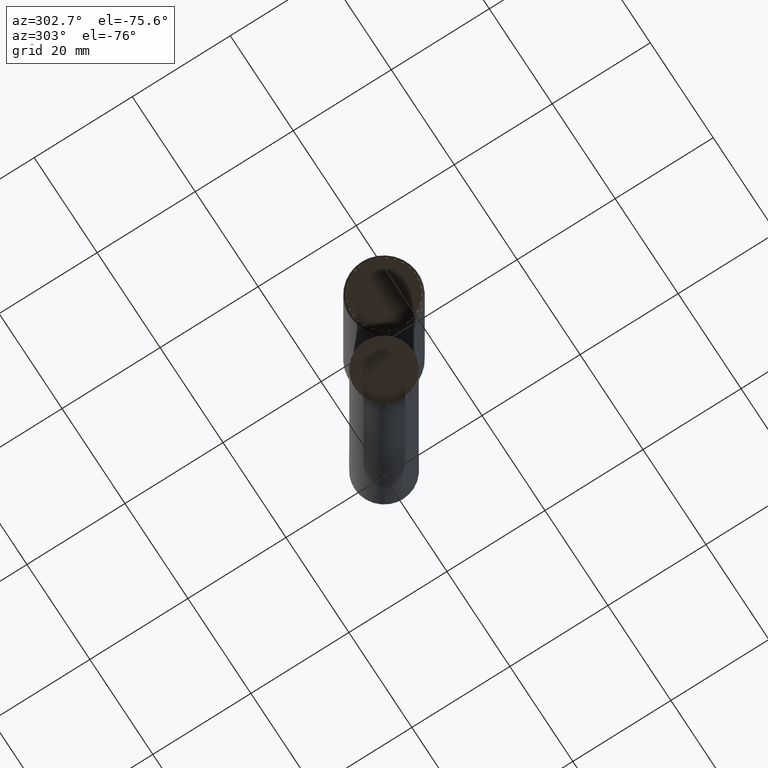
[diagram: clean part render]
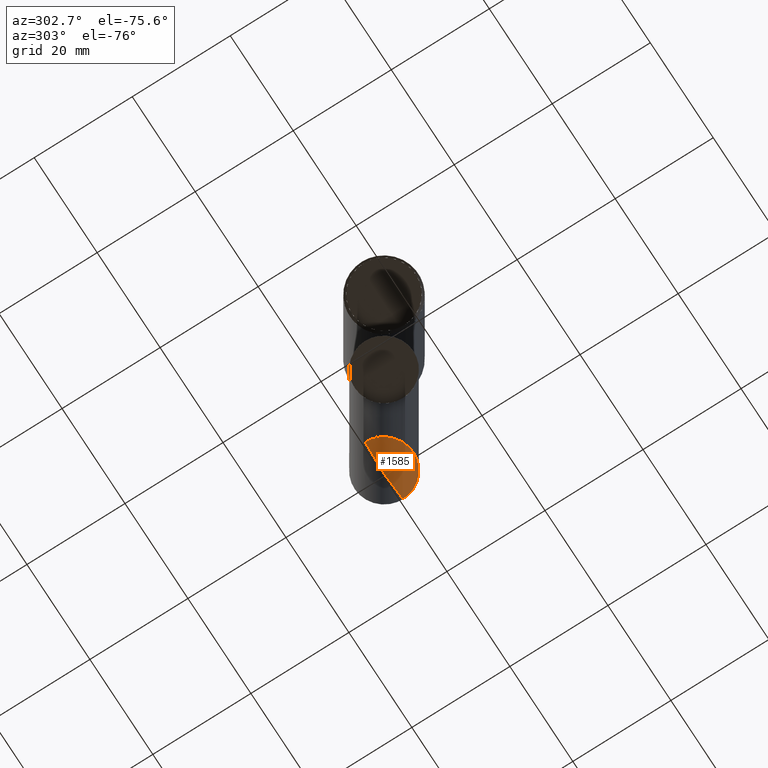
[diagram: same view with one face highlighted and labeled with its STEP entity id]
A machine part, auxiliary view. The second image highlights one B-rep face of the part: STEP entity #1585.
In plain terms, the highlighted face is a freeform B-spline surface patch.
Its self-contained STEP definition (entity closure, byte-faithful):
#1454=CARTESIAN_POINT('',(0.0,0.0,-79.0));
#1455=CARTESIAN_POINT('',(6.0,0.0,-76.816178594403));
#1459=CARTESIAN_POINT('',(-6.0,0.0,-76.816178594403));
#1466=CARTESIAN_POINT('',(-6.0,-6.0,-76.816178594403));
#1467=CARTESIAN_POINT('',(0.0,-6.0,-76.816178594403));
#1468=CARTESIAN_POINT('',(6.0,-6.0,-76.816178594403));
#1570=(
BOUNDED_SURFACE()
B_SPLINE_SURFACE(1,2,(
(#1454,#1454,#1454,#1454,#1454),
(#1459,#1466,#1467,#1468,#1455)
), .UNSPECIFIED.,.F.,.F.,.F.)
B_SPLINE_SURFACE_WITH_KNOTS((2,2),(3,2,3),(
0.0,1.0),(
0.0,0.5,1.0), .UNSPECIFIED.)
GEOMETRIC_REPRESENTATION_ITEM()
RATIONAL_B_SPLINE_SURFACE(((1.0,0.707106781187,1.0,0.707106781187,1.0),
(1.0,0.707106781187,1.0,0.707106781187,1.0)
))
REPRESENTATION_ITEM('')
SURFACE()
);
#1571=(
BOUNDED_CURVE()
B_SPLINE_CURVE(1,(#1455,#1454),.UNSPECIFIED.,.F.,.F.)
B_SPLINE_CURVE_WITH_KNOTS((2,2),
(0.0,1.0),.UNSPECIFIED.)
CURVE()
GEOMETRIC_REPRESENTATION_ITEM()
RATIONAL_B_SPLINE_CURVE((1.0,1.0))
REPRESENTATION_ITEM('')
);
#1572=(
BOUNDED_CURVE()
B_SPLINE_CURVE(1,(#1454,#1459),.UNSPECIFIED.,.F.,.F.)
B_SPLINE_CURVE_WITH_KNOTS((2,2),
(0.0,1.0),.UNSPECIFIED.)
CURVE()
GEOMETRIC_REPRESENTATION_ITEM()
RATIONAL_B_SPLINE_CURVE((1.0,1.0))
REPRESENTATION_ITEM('')
);
#1573=(
BOUNDED_CURVE()
B_SPLINE_CURVE(2,(#1459,#1466,#1467,#1468,#1455),.UNSPECIFIED.,.F.,.F.)
B_SPLINE_CURVE_WITH_KNOTS((3,2,3),
(0.0,0.5,1.0),.UNSPECIFIED.)
CURVE()
GEOMETRIC_REPRESENTATION_ITEM()
RATIONAL_B_SPLINE_CURVE((1.0,0.707106781187,1.0,0.707106781187,1.0))
REPRESENTATION_ITEM('')
);
#1574=VERTEX_POINT('',#1454);
#1575=VERTEX_POINT('',#1455);
#1576=VERTEX_POINT('',#1459);
#1577=EDGE_CURVE('',#1575,#1574,#1571,.T.);
#1578=EDGE_CURVE('',#1574,#1576,#1572,.T.);
#1579=EDGE_CURVE('',#1576,#1575,#1573,.T.);
#1580=ORIENTED_EDGE('',*,*,#1577,.T.);
#1581=ORIENTED_EDGE('',*,*,#1578,.T.);
#1582=ORIENTED_EDGE('',*,*,#1579,.T.);
#1583=EDGE_LOOP('',(#1580,#1581,#1582));
#1584=FACE_OUTER_BOUND('',#1583,.T.);
#1585=ADVANCED_FACE('',(#1584),#1570,.T.);